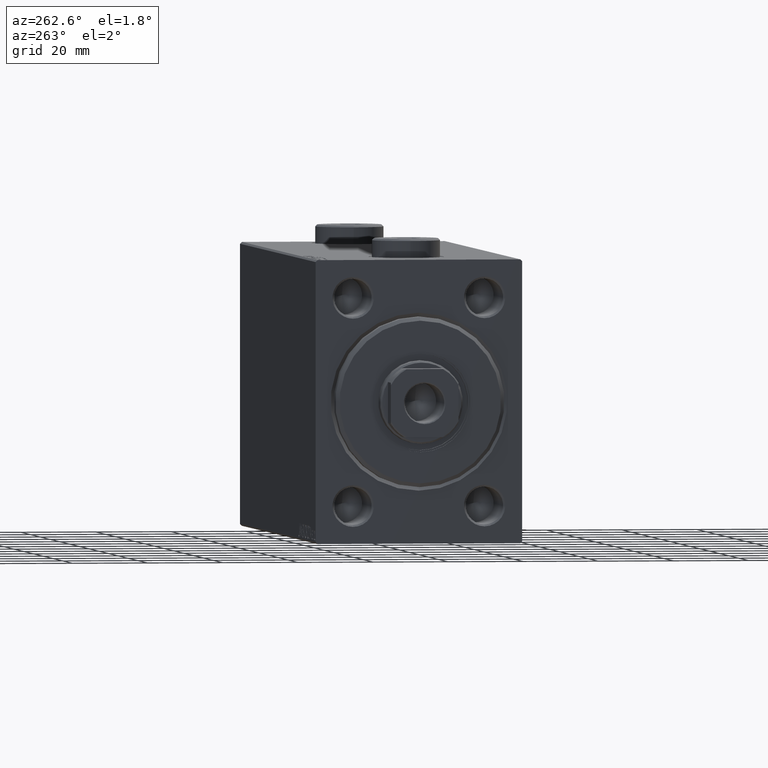
[diagram: clean part render]
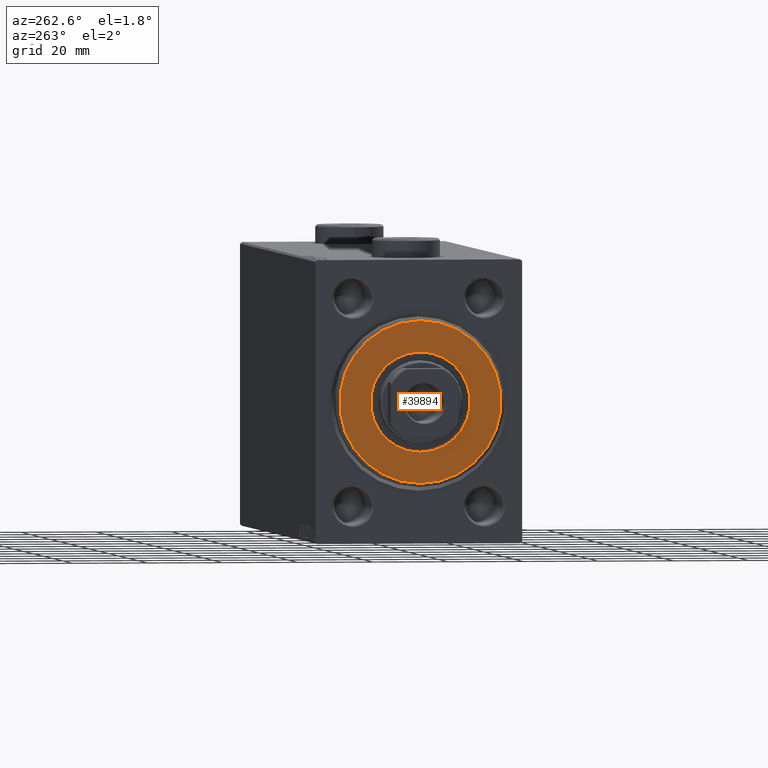
[diagram: same view with one face highlighted and labeled with its STEP entity id]
A machine part, auxiliary view. The second image highlights one B-rep face of the part: STEP entity #39894.
In plain terms, the highlighted planar face has unit normal (-1, 0, 0).
Its self-contained STEP definition (entity closure, byte-faithful):
#253 = CARTESIAN_POINT ( 'NONE',  ( 3.000000000000000000, 1.622657008870243277E-15, 13.25000000000000178 ) ) ;
#1820 = AXIS2_PLACEMENT_3D ( 'NONE', #5632, #39985, #8621 ) ;
#2691 = CARTESIAN_POINT ( 'NONE',  ( 3.000000000000000000, 0.000000000000000000, 0.000000000000000000 ) ) ;
#2906 = DIRECTION ( 'NONE',  ( 0.000000000000000000, 0.000000000000000000, -1.000000000000000000 ) ) ;
#4766 = AXIS2_PLACEMENT_3D ( 'NONE', #2691, #34943, #2906 ) ;
#5632 = CARTESIAN_POINT ( 'NONE',  ( 3.000000000000000000, 0.000000000000000000, 0.000000000000000000 ) ) ;
#8621 = DIRECTION ( 'NONE',  ( 0.000000000000000000, 0.000000000000000000, -1.000000000000000000 ) ) ;
#10181 = EDGE_LOOP ( 'NONE', ( #42435, #12627 ) ) ;
#11168 = VERTEX_POINT ( 'NONE', #17762 ) ;
#11192 = VERTEX_POINT ( 'NONE', #15671 ) ;
#12627 = ORIENTED_EDGE ( 'NONE', *, *, #35570, .F. ) ;
#12709 = DIRECTION ( 'NONE',  ( 0.000000000000000000, 0.000000000000000000, -1.000000000000000000 ) ) ;
#14834 = AXIS2_PLACEMENT_3D ( 'NONE', #21632, #14919, #35696 ) ;
#14919 = DIRECTION ( 'NONE',  ( 1.000000000000000000, 0.000000000000000000, 0.000000000000000000 ) ) ;
#15671 = CARTESIAN_POINT ( 'NONE',  ( 3.000000000000000000, 0.000000000000000000, 21.50000000000000355 ) ) ;
#16597 = CIRCLE ( 'NONE', #18073, 13.25000000000000178 ) ;
#17762 = CARTESIAN_POINT ( 'NONE',  ( 3.000000000000000000, 0.000000000000000000, -13.25000000000000178 ) ) ;
#18073 = AXIS2_PLACEMENT_3D ( 'NONE', #19637, #44291, #12709 ) ;
#19258 = AXIS2_PLACEMENT_3D ( 'NONE', #38290, #25134, #41748 ) ;
#19416 = EDGE_LOOP ( 'NONE', ( #21420, #43695 ) ) ;
#19637 = CARTESIAN_POINT ( 'NONE',  ( 3.000000000000000000, 0.000000000000000000, 0.000000000000000000 ) ) ;
#20765 = FACE_OUTER_BOUND ( 'NONE', #19416, .T. ) ;
#21420 = ORIENTED_EDGE ( 'NONE', *, *, #27517, .T. ) ;
#21632 = CARTESIAN_POINT ( 'NONE',  ( 3.000000000000000000, 0.000000000000000000, 0.000000000000000000 ) ) ;
#22176 = CARTESIAN_POINT ( 'NONE',  ( 3.000000000000000000, 2.694222958124177598E-15, -21.50000000000000355 ) ) ;
#24237 = PLANE ( 'NONE',  #19258 ) ;
#24994 = VERTEX_POINT ( 'NONE', #22176 ) ;
#25134 = DIRECTION ( 'NONE',  ( 1.000000000000000000, -0.000000000000000000, 0.000000000000000000 ) ) ;
#27517 = EDGE_CURVE ( 'NONE', #11192, #24994, #41549, .T. ) ;
#27696 = EDGE_CURVE ( 'NONE', #24994, #11192, #36383, .T. ) ;
#28590 = FACE_BOUND ( 'NONE', #10181, .T. ) ;
#34067 = VERTEX_POINT ( 'NONE', #253 ) ;
#34943 = DIRECTION ( 'NONE',  ( 1.000000000000000000, -0.000000000000000000, 0.000000000000000000 ) ) ;
#35484 = CIRCLE ( 'NONE', #14834, 13.25000000000000178 ) ;
#35570 = EDGE_CURVE ( 'NONE', #34067, #11168, #16597, .T. ) ;
#35696 = DIRECTION ( 'NONE',  ( 0.000000000000000000, 0.000000000000000000, -1.000000000000000000 ) ) ;
#35773 = EDGE_CURVE ( 'NONE', #11168, #34067, #35484, .T. ) ;
#36383 = CIRCLE ( 'NONE', #1820, 21.50000000000000355 ) ;
#38290 = CARTESIAN_POINT ( 'NONE',  ( 3.000000000000000000, 0.000000000000000000, 0.000000000000000000 ) ) ;
#39894 = ADVANCED_FACE ( 'NONE', ( #20765, #28590 ), #24237, .T. ) ;
#39985 = DIRECTION ( 'NONE',  ( 1.000000000000000000, -0.000000000000000000, 0.000000000000000000 ) ) ;
#41549 = CIRCLE ( 'NONE', #4766, 21.50000000000000355 ) ;
#41748 = DIRECTION ( 'NONE',  ( 0.000000000000000000, 0.000000000000000000, -1.000000000000000000 ) ) ;
#42435 = ORIENTED_EDGE ( 'NONE', *, *, #35773, .F. ) ;
#43695 = ORIENTED_EDGE ( 'NONE', *, *, #27696, .T. ) ;
#44291 = DIRECTION ( 'NONE',  ( 1.000000000000000000, 0.000000000000000000, 0.000000000000000000 ) ) ;